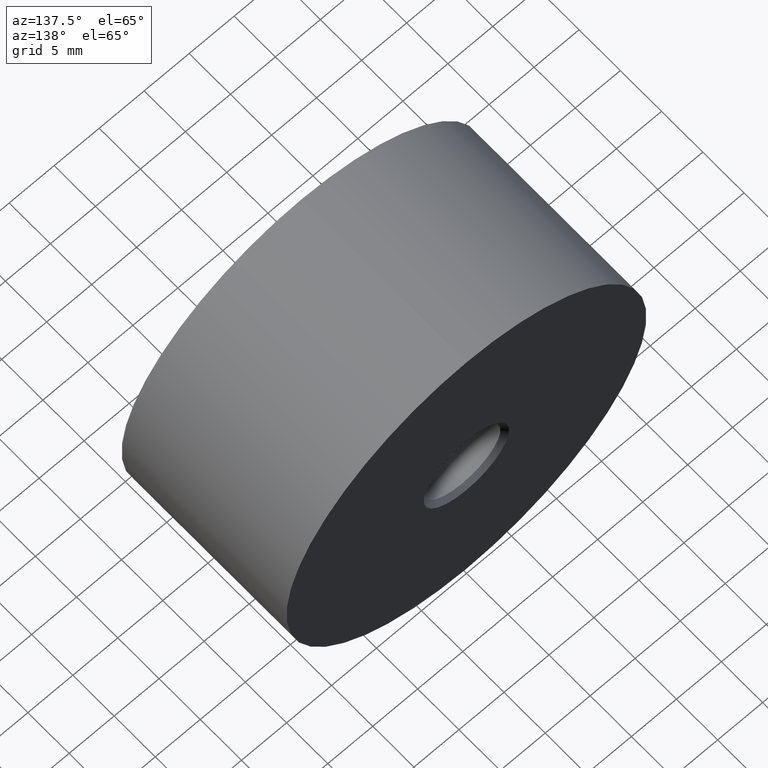
[diagram: clean part render]
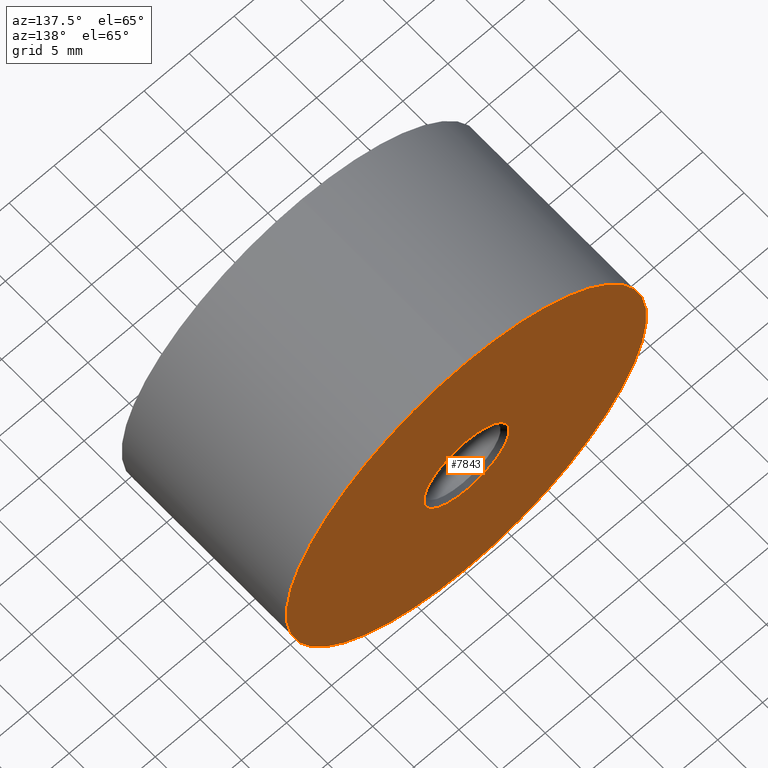
[diagram: same view with one face highlighted and labeled with its STEP entity id]
A machine part, auxiliary view. The second image highlights one B-rep face of the part: STEP entity #7843.
In plain terms, the highlighted planar face has unit normal (-0, 1, 0).
Its self-contained STEP definition (entity closure, byte-faithful):
#304 = AXIS2_PLACEMENT_3D ( 'NONE', #15571, #9605, #13223 ) ;
#456 = CIRCLE ( 'NONE', #1826, 4.750000000000002665 ) ;
#480 = DIRECTION ( 'NONE',  ( -0.000000000000000000, 1.000000000000000000, -0.000000000000000000 ) ) ;
#499 = EDGE_CURVE ( 'NONE', #6471, #5709, #13552, .T. ) ;
#527 = DIRECTION ( 'NONE',  ( 0.000000000000000000, 0.000000000000000000, 1.000000000000000000 ) ) ;
#987 = ORIENTED_EDGE ( 'NONE', *, *, #5915, .T. ) ;
#1515 = CARTESIAN_POINT ( 'NONE',  ( 0.000000000000000000, 20.00000000000000000, 0.000000000000000000 ) ) ;
#1826 = AXIS2_PLACEMENT_3D ( 'NONE', #11948, #4552, #5947 ) ;
#2730 = DIRECTION ( 'NONE',  ( -0.000000000000000000, 1.000000000000000000, -0.000000000000000000 ) ) ;
#2783 = FACE_OUTER_BOUND ( 'NONE', #6933, .T. ) ;
#3320 = CARTESIAN_POINT ( 'NONE',  ( 2.449293598294706907E-15, 20.00000000000000000, -20.00000000000000355 ) ) ;
#4270 = EDGE_LOOP ( 'NONE', ( #12695, #10419 ) ) ;
#4430 = CIRCLE ( 'NONE', #13643, 20.00000000000000355 ) ;
#4552 = DIRECTION ( 'NONE',  ( -0.000000000000000000, 1.000000000000000000, -0.000000000000000000 ) ) ;
#5267 = CARTESIAN_POINT ( 'NONE',  ( 0.000000000000000000, 20.00000000000000000, 4.750000000000002665 ) ) ;
#5611 = CARTESIAN_POINT ( 'NONE',  ( -20.00000000000000355, 20.00000000000000000, 0.000000000000000000 ) ) ;
#5709 = VERTEX_POINT ( 'NONE', #9298 ) ;
#5738 = ORIENTED_EDGE ( 'NONE', *, *, #5876, .T. ) ;
#5876 = EDGE_CURVE ( 'NONE', #13315, #11973, #4430, .T. ) ;
#5915 = EDGE_CURVE ( 'NONE', #11973, #13315, #10667, .T. ) ;
#5947 = DIRECTION ( 'NONE',  ( 0.000000000000000000, 0.000000000000000000, 1.000000000000000000 ) ) ;
#6471 = VERTEX_POINT ( 'NONE', #5267 ) ;
#6933 = EDGE_LOOP ( 'NONE', ( #987, #5738 ) ) ;
#7843 = ADVANCED_FACE ( 'NONE', ( #2783, #9223 ), #15294, .T. ) ;
#7852 = CARTESIAN_POINT ( 'NONE',  ( 0.000000000000000000, 20.00000000000000000, 0.000000000000000000 ) ) ;
#8085 = DIRECTION ( 'NONE',  ( 0.000000000000000000, 0.000000000000000000, 1.000000000000000000 ) ) ;
#9091 = AXIS2_PLACEMENT_3D ( 'NONE', #5611, #14186, #8085 ) ;
#9223 = FACE_BOUND ( 'NONE', #4270, .T. ) ;
#9298 = CARTESIAN_POINT ( 'NONE',  ( 5.817072295949931370E-16, 20.00000000000000000, -4.750000000000002665 ) ) ;
#9605 = DIRECTION ( 'NONE',  ( -0.000000000000000000, 1.000000000000000000, -0.000000000000000000 ) ) ;
#10419 = ORIENTED_EDGE ( 'NONE', *, *, #11372, .F. ) ;
#10667 = CIRCLE ( 'NONE', #11222, 20.00000000000000355 ) ;
#11215 = DIRECTION ( 'NONE',  ( 0.000000000000000000, 0.000000000000000000, 1.000000000000000000 ) ) ;
#11222 = AXIS2_PLACEMENT_3D ( 'NONE', #7852, #480, #527 ) ;
#11372 = EDGE_CURVE ( 'NONE', #5709, #6471, #456, .T. ) ;
#11948 = CARTESIAN_POINT ( 'NONE',  ( 0.000000000000000000, 20.00000000000000000, 0.000000000000000000 ) ) ;
#11973 = VERTEX_POINT ( 'NONE', #13797 ) ;
#12695 = ORIENTED_EDGE ( 'NONE', *, *, #499, .F. ) ;
#13223 = DIRECTION ( 'NONE',  ( 0.000000000000000000, 0.000000000000000000, 1.000000000000000000 ) ) ;
#13315 = VERTEX_POINT ( 'NONE', #3320 ) ;
#13552 = CIRCLE ( 'NONE', #304, 4.750000000000002665 ) ;
#13643 = AXIS2_PLACEMENT_3D ( 'NONE', #1515, #2730, #11215 ) ;
#13797 = CARTESIAN_POINT ( 'NONE',  ( 0.000000000000000000, 20.00000000000000000, 20.00000000000000355 ) ) ;
#14186 = DIRECTION ( 'NONE',  ( -0.000000000000000000, 1.000000000000000000, 0.000000000000000000 ) ) ;
#15294 = PLANE ( 'NONE',  #9091 ) ;
#15571 = CARTESIAN_POINT ( 'NONE',  ( 0.000000000000000000, 20.00000000000000000, 0.000000000000000000 ) ) ;